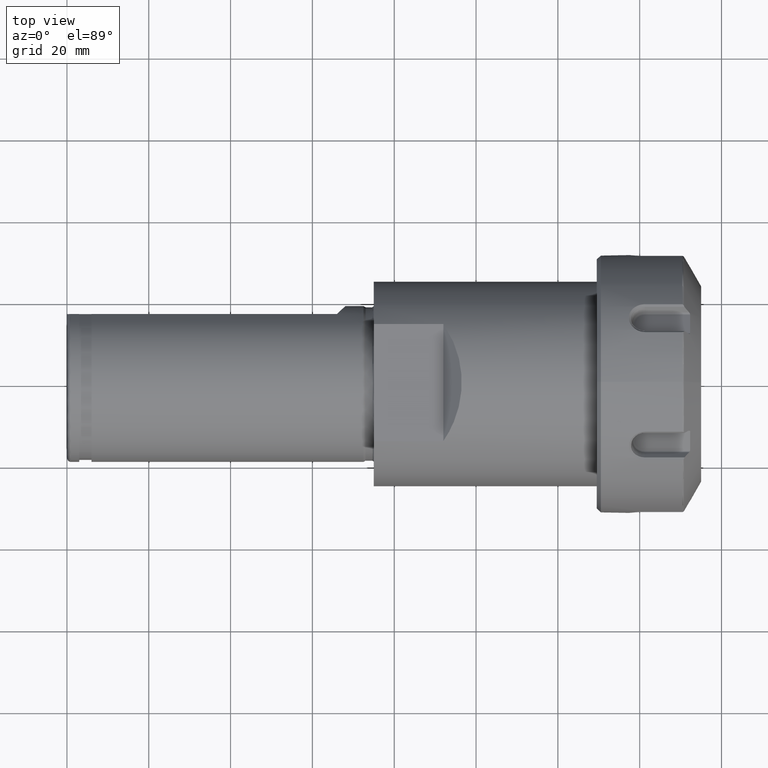
[diagram: clean part render]
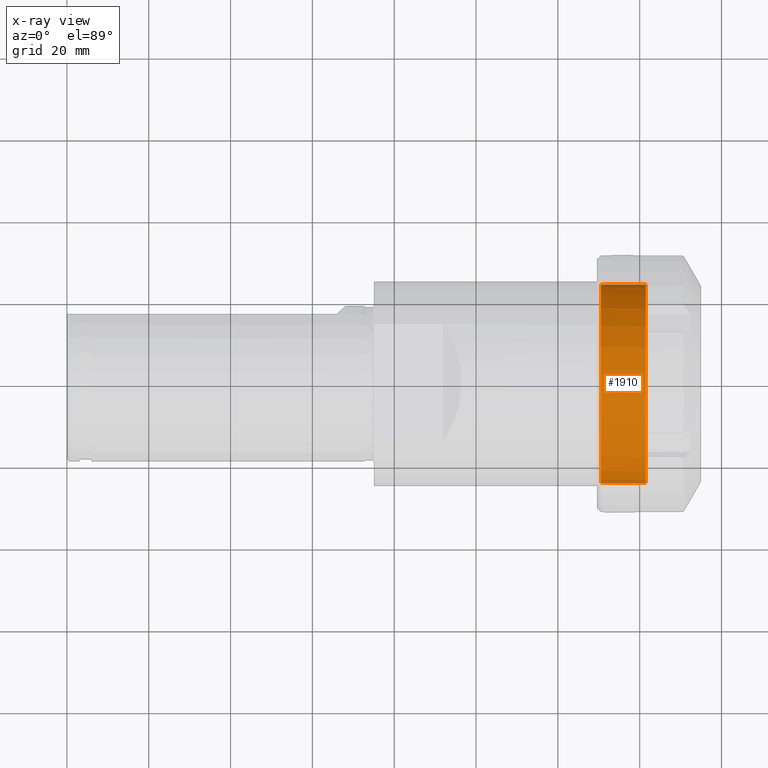
[diagram: x-ray — body ghosted, one internal face saturated and labeled with its STEP entity id]
A machine part, top view, then the same camera in x-ray: the body is ghosted and one INTERNAL B-rep face — a face not visible from any outside direction — is saturated and labeled: STEP entity #1910.
In plain terms, the highlighted cylindrical surface (bore or boss wall) has radius 24.3 mm, axis along (1, 0, 0).
Its self-contained STEP definition (entity closure, byte-faithful):
#234=CYLINDRICAL_SURFACE('',#2164,24.3);
#320=CIRCLE('',#2163,24.3);
#321=CIRCLE('',#2165,24.3);
#322=CIRCLE('',#2166,24.3);
#420=FACE_OUTER_BOUND('',#541,.T.);
#541=EDGE_LOOP('',(#1666,#1667,#1668,#1669,#1670));
#659=LINE('',#4222,#773);
#773=VECTOR('',#2609,24.3);
#951=VERTEX_POINT('',#4216);
#952=VERTEX_POINT('',#4219);
#953=VERTEX_POINT('',#4220);
#1197=EDGE_CURVE('',#951,#951,#320,.T.);
#1198=EDGE_CURVE('',#952,#953,#321,.T.);
#1199=EDGE_CURVE('',#952,#951,#659,.T.);
#1200=EDGE_CURVE('',#953,#952,#322,.T.);
#1666=ORIENTED_EDGE('',*,*,#1198,.F.);
#1667=ORIENTED_EDGE('',*,*,#1199,.T.);
#1668=ORIENTED_EDGE('',*,*,#1197,.T.);
#1669=ORIENTED_EDGE('',*,*,#1199,.F.);
#1670=ORIENTED_EDGE('',*,*,#1200,.F.);
#1910=ADVANCED_FACE('',(#420),#234,.F.);
#2163=AXIS2_PLACEMENT_3D('',#4217,#2603,#2604);
#2164=AXIS2_PLACEMENT_3D('',#4218,#2605,#2606);
#2165=AXIS2_PLACEMENT_3D('',#4221,#2607,#2608);
#2166=AXIS2_PLACEMENT_3D('',#4223,#2610,#2611);
#2603=DIRECTION('center_axis',(1.,0.,0.));
#2604=DIRECTION('ref_axis',(0.,1.,0.));
#2605=DIRECTION('center_axis',(1.,0.,0.));
#2606=DIRECTION('ref_axis',(0.,1.,0.));
#2607=DIRECTION('center_axis',(1.,0.,0.));
#2608=DIRECTION('ref_axis',(0.,1.,0.));
#2609=DIRECTION('',(1.,0.,0.));
#2610=DIRECTION('center_axis',(1.,0.,0.));
#2611=DIRECTION('ref_axis',(0.,1.,0.));
#4216=CARTESIAN_POINT('',(-0.75,-24.3,0.));
#4217=CARTESIAN_POINT('Origin',(-0.75,0.,0.));
#4218=CARTESIAN_POINT('Origin',(-12.75,0.,0.));
#4219=CARTESIAN_POINT('',(-11.75,-24.3,0.));
#4220=CARTESIAN_POINT('',(-11.75,-24.2995810646731,0.142688757016035));
#4221=CARTESIAN_POINT('Origin',(-11.75,0.,0.));
#4222=CARTESIAN_POINT('',(-12.75,-24.3,-2.97589172192807E-15));
#4223=CARTESIAN_POINT('Origin',(-11.75,0.,0.));